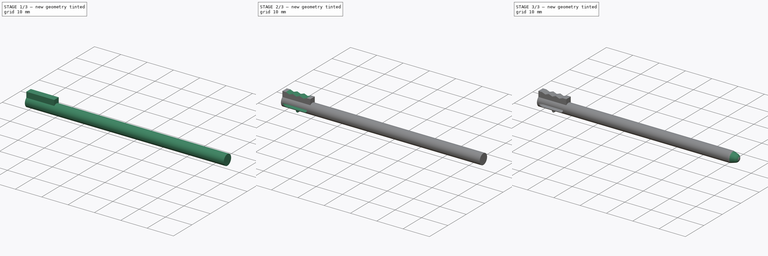
[diagram: build sequence overview — one tinted view per stage of 3, left to right]
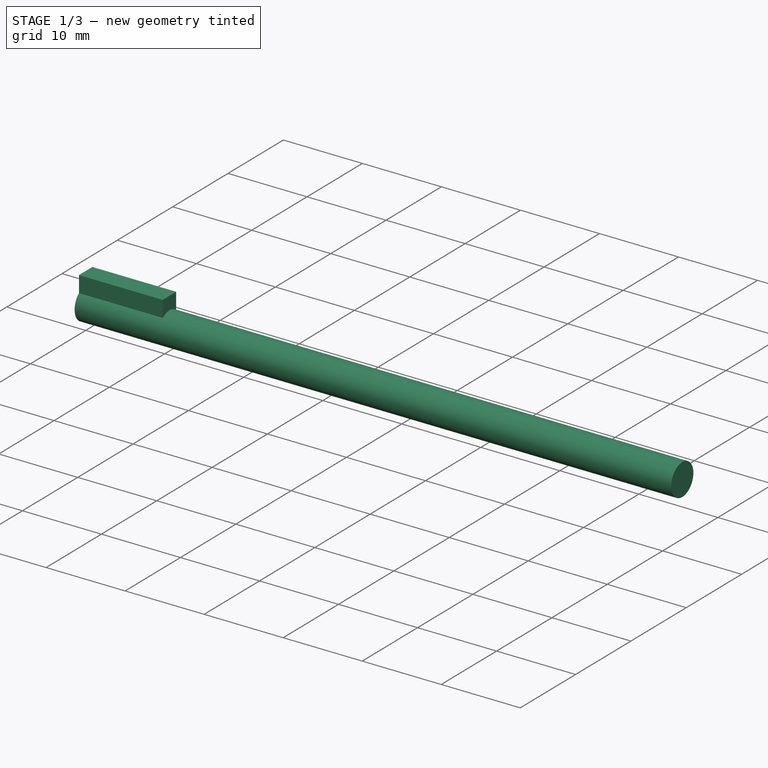
[diagram: stage 1 of 3 — iso view after this stage's code; geometry added in this stage tinted green]
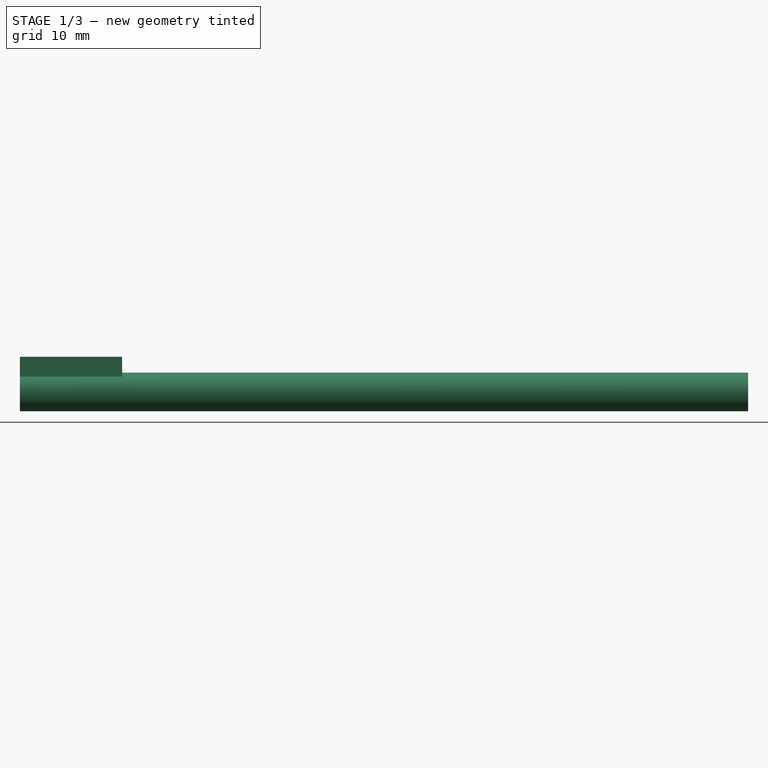
[diagram: stage 1 of 3 — front view after this stage's code; geometry added in this stage tinted green]
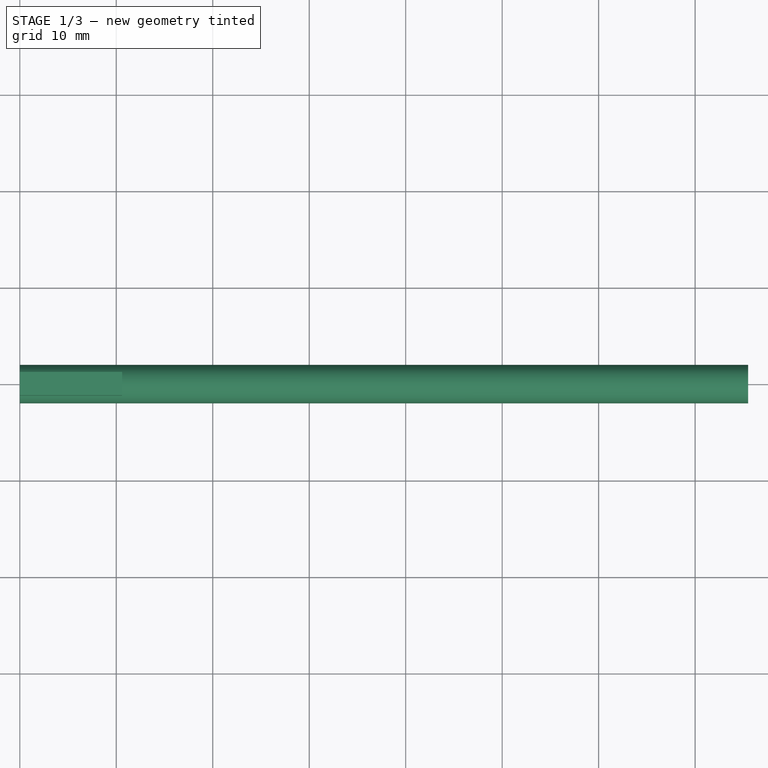
[diagram: stage 1 of 3 — top view after this stage's code; geometry added in this stage tinted green]
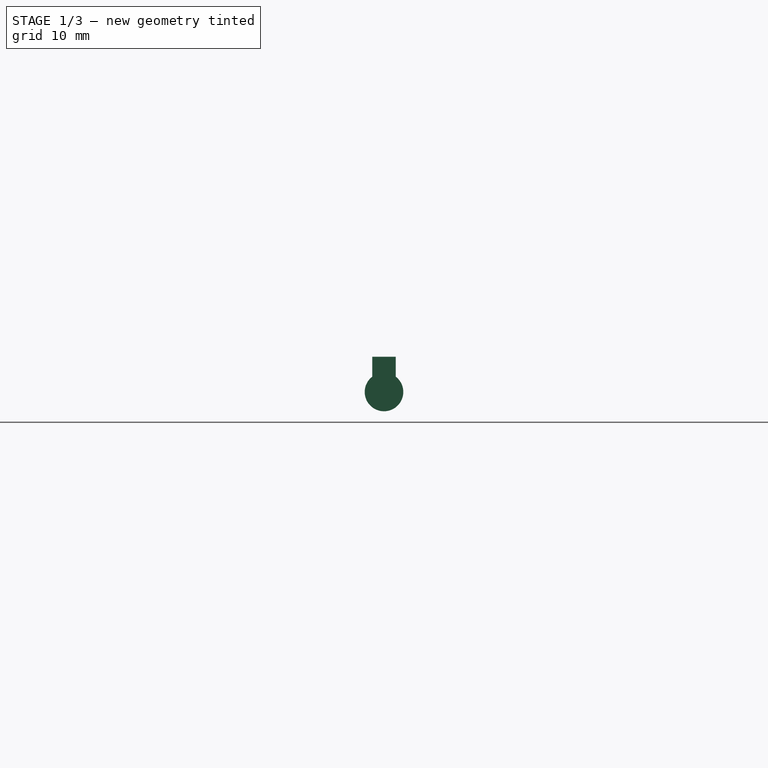
[diagram: stage 1 of 3 — right view after this stage's code; geometry added in this stage tinted green]
FCSTD DOCUMENT  (FreeCAD 1.0R39109 (Git))
Label: DS Stylus
License: Creative Commons Attribution-NonCommercial-ShareAlike
LicenseURL: http://creativecommons.org/licenses/by-nc-sa/4.0/
objects: Sketcher::SketchObject×7, PartDesign::Pad×3, PartDesign::Pocket×3, PartDesign::Groove×1, PartDesign::Body×1
note: 36 computed .brp shape members not serialized (recipe doc carries the construction recipe); baked Part::Feature solids carry a one-line shape summary decoded from their .brp

FEATURE [Sketcher::SketchObject] Sketch
  ArcFitTolerance = 0
  AttachmentSupport = -> [YZ_Plane]
  FullyConstrained = true
  MakeInternals = false
  MapMode = 5
  Placement = pos=(0,0,0) rot=(0.57735,0.57735,0.57735;2.0944rad)
  sketch-geometry (1):
    g0: Circle CenterX=0 CenterY=0 CenterZ=0 NormalX=0 NormalY=0 NormalZ=1 AngleXU=0 Radius=2
  constraints (2):
    c: Coincident(g0,g-1)
    c: Diameter(g0) = 4
FEATURE [PartDesign::Pad] Pad
  Direction = (1,0,0)
  Length = 75.5
  Length2 = 10
  Placement = pos=(0,0,0) rot=(0.57735,0.57735,0.57735;2.0944rad)
  Profile = -> Sketch
  ReferenceAxis = -> Sketch [N_Axis]
  Suppressed = false
  Type = 0
FEATURE [Sketcher::SketchObject] Sketch001
  ArcFitTolerance = 0
  AttachmentSupport = -> [Pad]
  ExternalGeometry = -> [Pad]
  FullyConstrained = true
  MakeInternals = false
  MapMode = 5
  Placement = pos=(0,0,0) rot=(0.57735,0.57735,-0.57735;4.18879rad)
  sketch-geometry (5):
    g0: LineSegment StartX=-1.2125 StartY=-3.65055 StartZ=0 EndX=1.2125 EndY=-3.65055 EndZ=0
    g1: LineSegment StartX=1.2125 StartY=-3.65055 StartZ=0 EndX=1.2125 EndY=-1.59055 EndZ=0
    g2: LineSegment StartX=1.2125 StartY=-1.59055 StartZ=0 EndX=-1.2125 EndY=-1.59055 EndZ=0
    g3: LineSegment StartX=-1.2125 StartY=-1.59055 StartZ=0 EndX=-1.2125 EndY=-3.65055 EndZ=0
    g4: LineSegment [constr] StartX=0 StartY=0 StartZ=0 EndX=0 EndY=-1.59055 EndZ=0
  constraints (14):
    c: Coincident(g0,g1)
    c: Coincident(g1,g2)
    c: Coincident(g2,g3)
    c: Coincident(g3,g0)
    c: Horizontal(g0)
    c: Horizontal(g2)
    c: Vertical(g1)
    c: Vertical(g3)
    c: Distance(g2) = 2.425
    c: Distance(g1) = 2.06
    c: Coincident(g4,g-3)
    c: Vertical(g4)
    c: Symmetric(g2,g1,g4)
    c: PointOnObject(g2,g-3)
FEATURE [PartDesign::Pad] Pad001
  BaseFeature = -> Pad
  Direction = (-1,0,0)
  Length = 10.6
  Length2 = 10
  Placement = pos=(0,0,0) rot=(0.57735,0.57735,0.57735;2.0944rad)
  Profile = -> Sketch001
  ReferenceAxis = -> Sketch001 [N_Axis]
  Refine = true
  Reversed = true
  Suppressed = false
  Type = 0
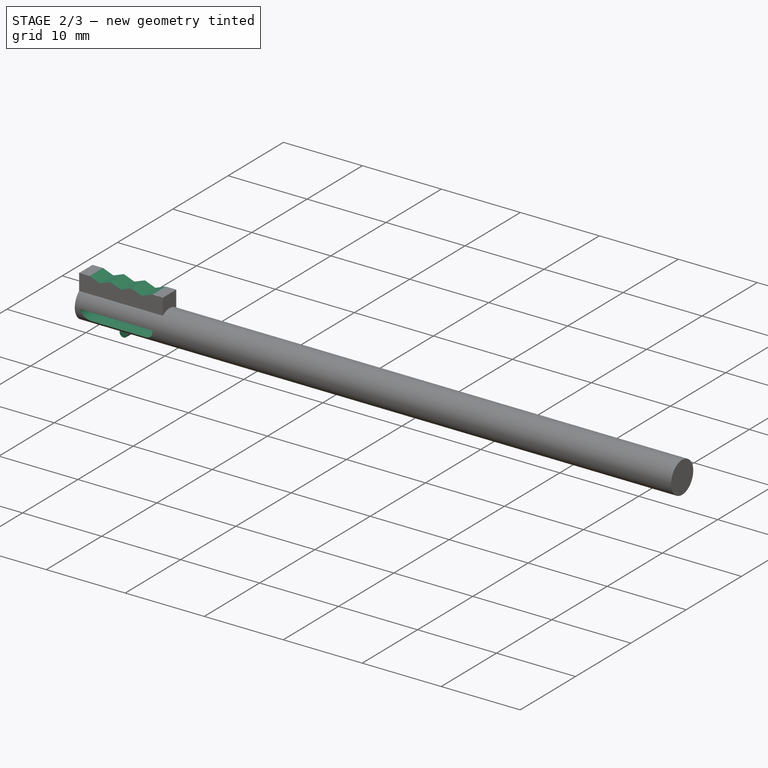
[diagram: stage 2 of 3 — iso view after this stage's code; geometry added in this stage tinted green]
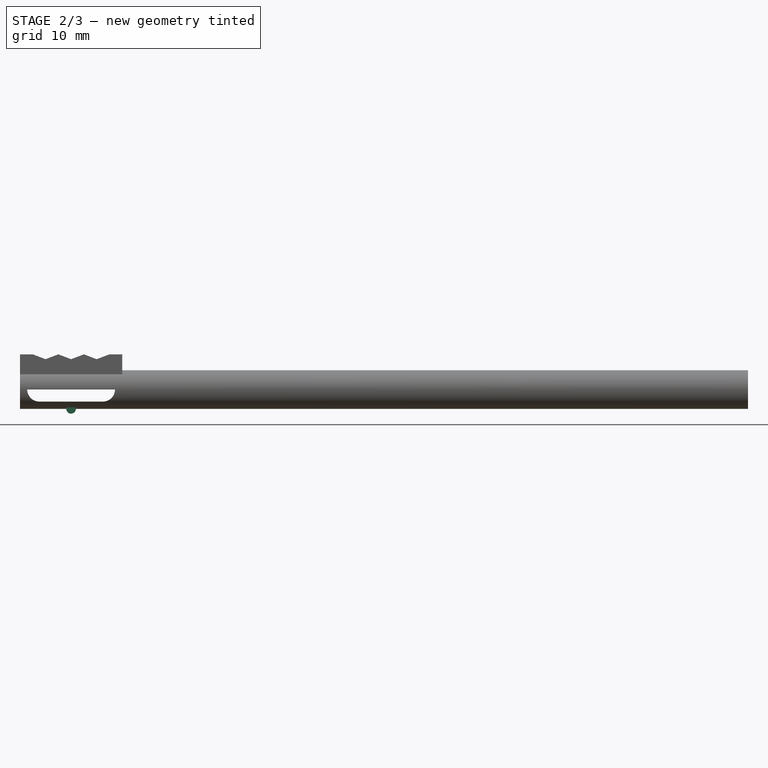
[diagram: stage 2 of 3 — front view after this stage's code; geometry added in this stage tinted green]
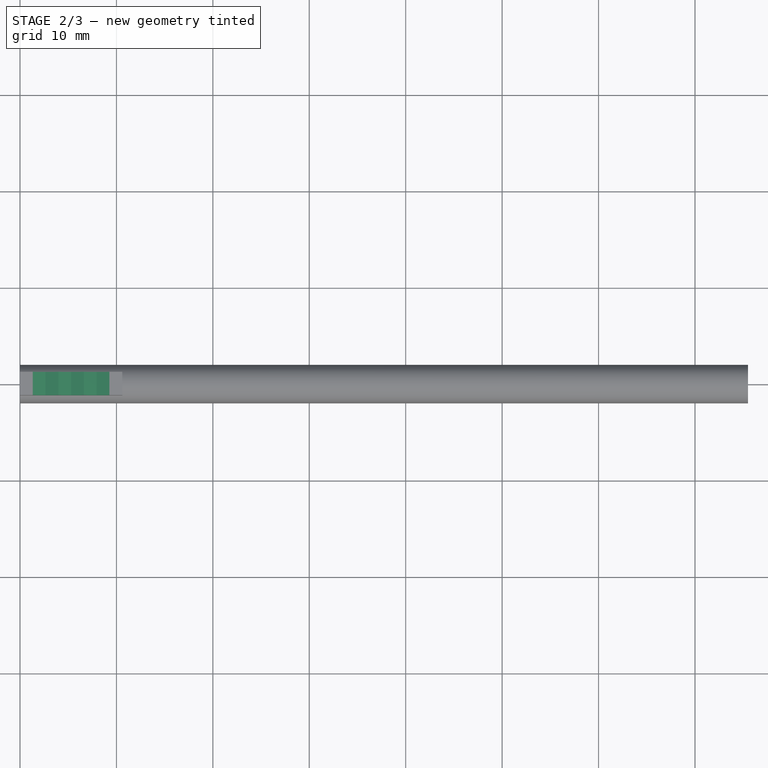
[diagram: stage 2 of 3 — top view after this stage's code; geometry added in this stage tinted green]
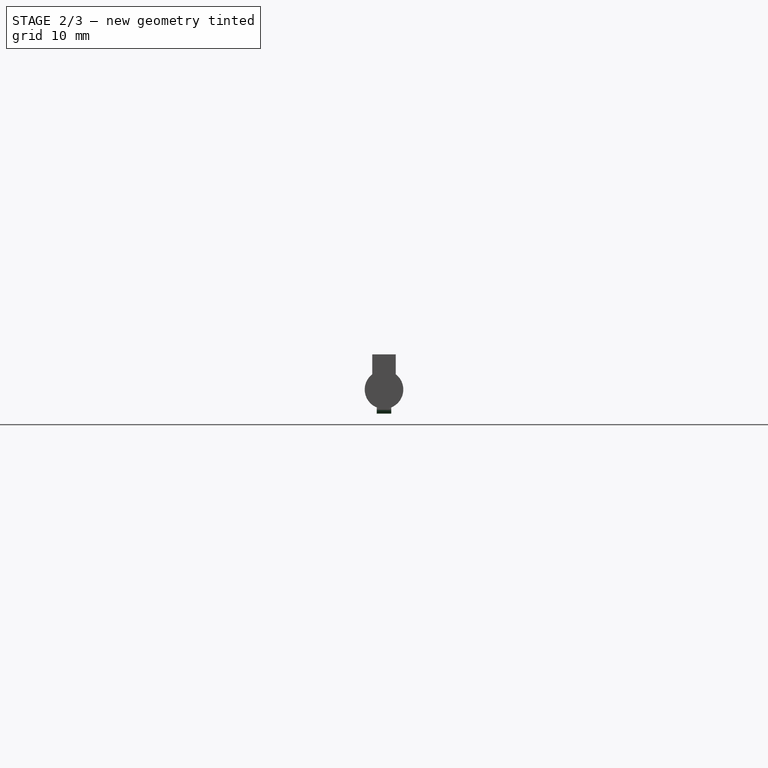
[diagram: stage 2 of 3 — right view after this stage's code; geometry added in this stage tinted green]
FEATURE [Sketcher::SketchObject] Sketch002
  ArcFitTolerance = 0
  AttachmentSupport = -> [Pad001]
  ExternalGeometry = -> [Pad001]
  FullyConstrained = true
  MakeInternals = false
  MapMode = 5
  Placement = pos=(-3e-16,-1.2125,1e-16) rot=(0.57735,0.57735,-0.57735;2.0944rad)
  sketch-geometry (17):
    g0: LineSegment [constr] StartX=-3.65055 StartY=-2.2e-15 StartZ=0 EndX=-3.65055 EndY=1.325 EndZ=0
    g1: LineSegment [constr] StartX=-3.65055 StartY=1.325 StartZ=0 EndX=-3.65055 EndY=3.975 EndZ=0
    g2: LineSegment [constr] StartX=-3.65055 StartY=3.975 StartZ=0 EndX=-3.65055 EndY=6.625 EndZ=0
    g3: LineSegment [constr] StartX=-3.65055 StartY=6.625 StartZ=0 EndX=-3.65055 EndY=9.275 EndZ=0
    g4: LineSegment [constr] StartX=-3.65055 StartY=9.275 StartZ=0 EndX=-3.65055 EndY=10.6 EndZ=0
    g5: LineSegment StartX=-3.65055 StartY=1.325 StartZ=0 EndX=-3.15055 EndY=2.65 EndZ=0
    g6: LineSegment StartX=-3.65055 StartY=3.975 StartZ=0 EndX=-3.15055 EndY=2.65 EndZ=0
    g7: LineSegment StartX=-3.65055 StartY=3.975 StartZ=0 EndX=-3.15055 EndY=5.3 EndZ=0
    g8: LineSegment StartX=-3.15055 StartY=5.3 StartZ=0 EndX=-3.65055 EndY=6.625 EndZ=0
    g9: LineSegment StartX=-3.65055 StartY=6.625 StartZ=0 EndX=-3.15055 EndY=7.95 EndZ=0
    g10: LineSegment StartX=-3.15055 StartY=7.95 StartZ=0 EndX=-3.65055 EndY=9.275 EndZ=0
    g11: LineSegment [constr] StartX=-3.15055 StartY=7.95 StartZ=0 EndX=-3.65055 EndY=7.95 EndZ=0
    g12: LineSegment [constr] StartX=-3.15055 StartY=5.3 StartZ=0 EndX=-3.65055 EndY=5.3 EndZ=0
    g13: LineSegment [constr] StartX=-3.15055 StartY=2.65 StartZ=0 EndX=-3.65055 EndY=2.65 EndZ=0
    g14: LineSegment StartX=-3.65055 StartY=9.275 StartZ=0 EndX=-4.65055 EndY=9.275 EndZ=0
    g15: LineSegment StartX=-4.65055 StartY=9.275 StartZ=0 EndX=-4.65055 EndY=1.325 EndZ=0
    g16: LineSegment StartX=-4.65055 StartY=1.325 StartZ=0 EndX=-3.65055 EndY=1.325 EndZ=0
  constraints (43):
    c: Coincident(g0,g-3)
    c: PointOnObject(g0,g-3)
    c: Coincident(g1,g0)
    c: PointOnObject(g1,g-3)
    c: Coincident(g2,g1)
    c: PointOnObject(g2,g-3)
    c: Coincident(g3,g2)
    c: PointOnObject(g3,g-3)
    c: Coincident(g4,g3)
    c: Coincident(g4,g-3)
    c: Distance(g3) = 2.65
    c: Equal(g3,g2)
    c: Equal(g2,g1)
    c: Equal(g4,g0)
    c: Coincident(g5,g0)
    c: Coincident(g6,g1)
    c: Coincident(g6,g5)
    c: Coincident(g7,g1)
    c: Coincident(g8,g7)
    c: Coincident(g8,g2)
    c: Coincident(g9,g2)
    c: Coincident(g10,g9)
    c: Coincident(g10,g3)
    c: Coincident(g11,g9)
    c: Horizontal(g11)
    c: Coincident(g12,g7)
    c: Horizontal(g12)
    c: Coincident(g13,g5)
    c: Horizontal(g13)
    c: Symmetric(g0,g1,g13)
    c: Symmetric(g1,g2,g12)
    c: Symmetric(g2,g3,g11)
    c: Equal(g11,g12)
    c: Equal(g12,g13)
    c: Distance(g12) = 0.5
    c: Coincident(g14,g10)
    c: Horizontal(g14)
    c: Coincident(g15,g14)
    c: Vertical(g15)
    c: Coincident(g16,g15)
    c: Coincident(g16,g5)
    c: Horizontal(g16)
    c: Distance(g16) = 1
FEATURE [PartDesign::Pocket] Pocket
  BaseFeature = -> Pad001
  Direction = (0,1,0)
  Length = 5
  Length2 = 5
  Placement = pos=(0,0,0) rot=(0.57735,0.57735,0.57735;2.0944rad)
  Profile = -> Sketch002
  ReferenceAxis = -> Sketch002 [N_Axis]
  Suppressed = false
  Type = 0
FEATURE [Sketcher::SketchObject] Sketch003
  ArcFitTolerance = 0
  AttachmentSupport = -> [XZ_Plane]
  ExternalGeometry = -> [Pocket]
  FullyConstrained = true
  MakeInternals = false
  MapMode = 5
  Placement = pos=(0,0,0) rot=(1,0,0;1.5708rad)
  sketch-geometry (9):
    g0: ArcOfCircle [constr] CenterX=2 CenterY=0 CenterZ=0 NormalX=0 NormalY=0 NormalZ=1 AngleXU=0 Radius=1.25 StartAngle=1.5708 EndAngle=4.71239
    g1: ArcOfCircle [constr] CenterX=8.6 CenterY=0 CenterZ=0 NormalX=0 NormalY=0 NormalZ=1 AngleXU=0 Radius=1.25 StartAngle=4.71239 EndAngle=7.85398
    g2: LineSegment StartX=2 StartY=-1.25 StartZ=0 EndX=8.6 EndY=-1.25 EndZ=0
    g3: LineSegment [constr] StartX=8.6 StartY=1.25 StartZ=0 EndX=2 EndY=1.25 EndZ=0
    g4: LineSegment [constr] StartX=0 StartY=6.1e-15 StartZ=0 EndX=0.75 EndY=6.1e-15 EndZ=0
    g5: LineSegment [constr] StartX=2 StartY=0 StartZ=0 EndX=2 EndY=-1.25 EndZ=0
    g6: LineSegment StartX=0.75 StartY=6.1e-15 StartZ=0 EndX=9.85 EndY=6.1e-15 EndZ=0
    g7: ArcOfCircle CenterX=2 CenterY=1.9e-15 CenterZ=0 NormalX=0 NormalY=0 NormalZ=1 AngleXU=0 Radius=1.25 StartAngle=3.14159 EndAngle=4.71239
    g8: ArcOfCircle CenterX=8.6 CenterY=9.7e-15 CenterZ=0 NormalX=0 NormalY=0 NormalZ=1 AngleXU=0 Radius=1.25 StartAngle=4.71239 EndAngle=6.28319
  constraints (24):
    c: Tangent(g0,g2) = -1.5708
    c: Tangent(g2,g1) = -1.5708
    c: Tangent(g1,g3) = -1.5708
    c: Tangent(g3,g0) = -1.5708
    c: Equal(g0,g1)
    c: PointOnObject(g0,g-1)
    c: PointOnObject(g1,g-1)
    c: Coincident(g4,g-1)
    c: PointOnObject(g4,g0)
    c: Distance(g4) = 0.75
    c: Distance(g2) = 6.6
    c: Coincident(g5,g0)
    c: Coincident(g5,g0)
    c: Distance(g5) = 1.25
    c: Horizontal(g4)
    c: Coincident(g6,g4)
    c: PointOnObject(g6,g1)
    c: Horizontal(g6)
    c: Coincident(g7,g6)
    c: Coincident(g7,g2)
    c: Coincident(g8,g2)
    c: Coincident(g8,g6)
    c: Equal(g7,g0)
    c: Equal(g1,g8)
FEATURE [PartDesign::Pocket] Pocket001
  BaseFeature = -> Pocket
  Direction = (0,1,-2e-16)
  Length = 5
  Length2 = 5
  Placement = pos=(0,0,0) rot=(0.57735,0.57735,0.57735;2.0944rad)
  Profile = -> Sketch003
  ReferenceAxis = -> Sketch003 [N_Axis]
  Suppressed = false
  Type = 4
FEATURE [Sketcher::SketchObject] Sketch004
  ArcFitTolerance = 0
  AttachmentSupport = -> [XZ_Plane]
  ExternalGeometry = -> [Pocket001]
  FullyConstrained = true
  MakeInternals = false
  MapMode = 5
  Placement = pos=(0,0,0) rot=(1,0,0;1.5708rad)
  sketch-geometry (3):
    g0: Circle CenterX=5.3 CenterY=-2 CenterZ=0 NormalX=0 NormalY=0 NormalZ=1 AngleXU=0 Radius=0.5
    g1: LineSegment [constr] StartX=5.3 StartY=-2 StartZ=0 EndX=5.3 EndY=1.15e-14 EndZ=0
    g2: LineSegment [constr] StartX=0 StartY=-2 StartZ=0 EndX=5.3 EndY=-2 EndZ=0
  constraints (7):
    c: Diameter(g0) = 1
    c: Coincident(g1,g0)
    c: Symmetric(g-4,g-4,g1)
    c: Coincident(g2,g-3)
    c: Coincident(g2,g0)
    c: Horizontal(g2)
    c: Vertical(g1)
FEATURE [PartDesign::Pad] Pad002
  BaseFeature = -> Pocket001
  Direction = (0,-1,2e-16)
  Length = 0.75
  Length2 = 0.75
  Placement = pos=(0,0,0) rot=(0.57735,0.57735,0.57735;2.0944rad)
  Profile = -> Sketch004
  ReferenceAxis = -> Sketch004 [N_Axis]
  Refine = true
  Suppressed = false
  Type = 4
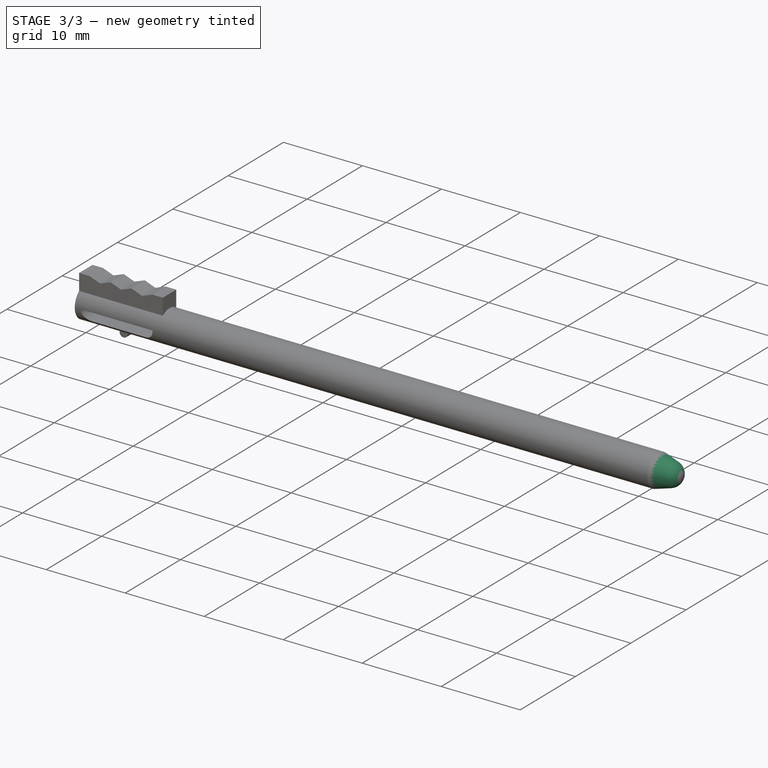
[diagram: stage 3 of 3 — iso view after this stage's code; geometry added in this stage tinted green]
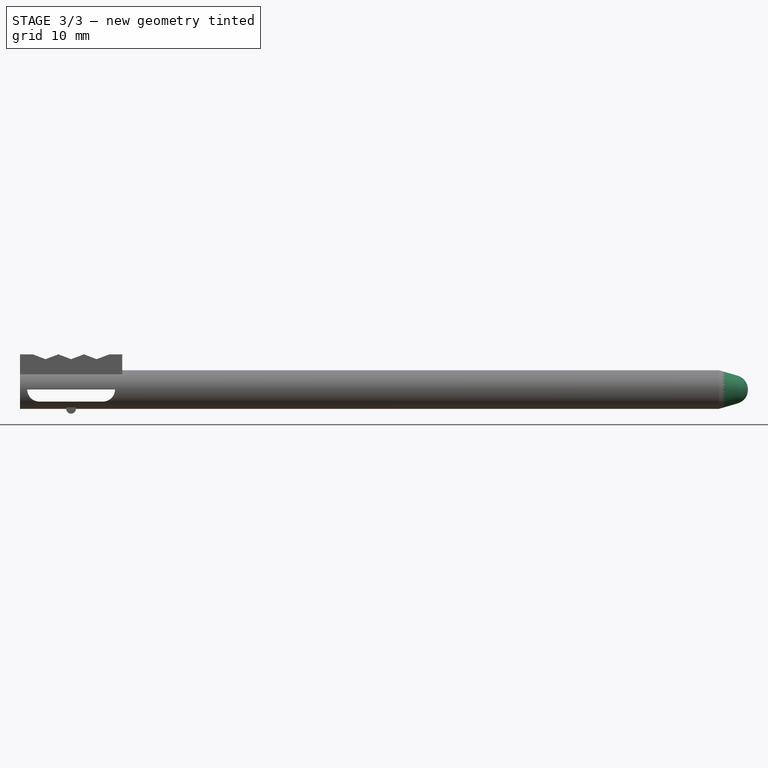
[diagram: stage 3 of 3 — front view after this stage's code; geometry added in this stage tinted green]
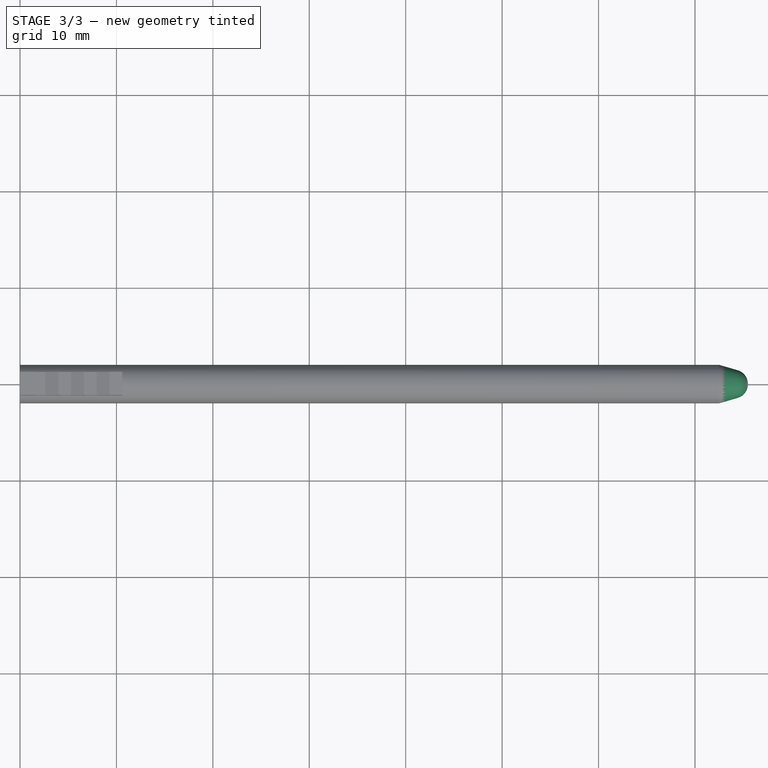
[diagram: stage 3 of 3 — top view after this stage's code; geometry added in this stage tinted green]
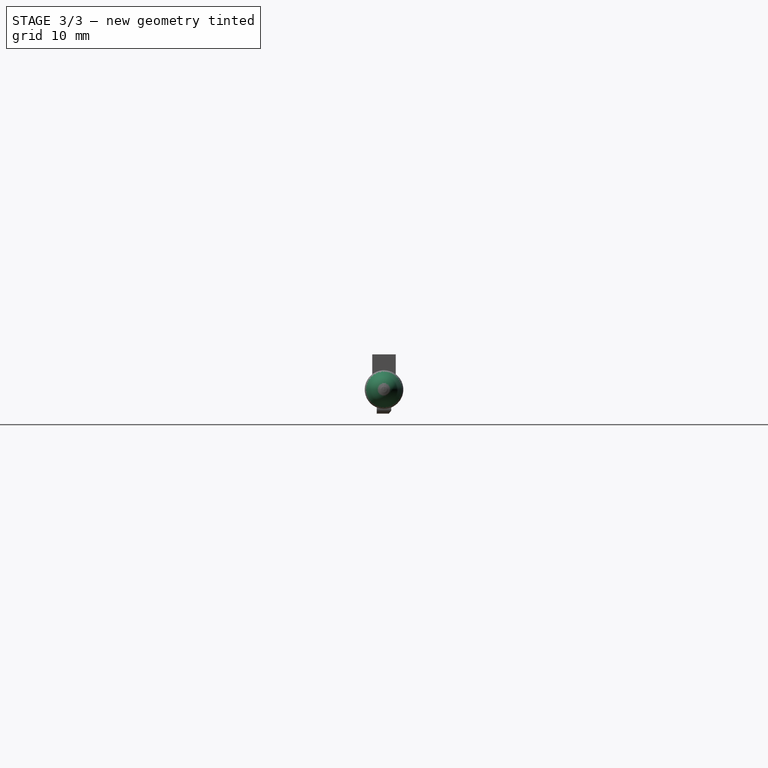
[diagram: stage 3 of 3 — right view after this stage's code; geometry added in this stage tinted green]
FEATURE [Sketcher::SketchObject] Sketch005
  ArcFitTolerance = 0
  AttachmentSupport = -> [XZ_Plane]
  ExternalGeometry = -> [Pad002]
  FullyConstrained = true
  MakeInternals = false
  MapMode = 5
  Placement = pos=(0,0,0) rot=(1,0,0;1.5708rad)
  sketch-geometry (6):
    g0: ArcOfCircle CenterX=74 CenterY=1.65281e-07 CenterZ=0 NormalX=0 NormalY=0 NormalZ=1 AngleXU=0 Radius=1.5 StartAngle=6.28319 EndAngle=7.57019
    g1: LineSegment StartX=75.5 StartY=2 StartZ=0 EndX=72.5 EndY=2 EndZ=0
    g2: LineSegment StartX=72.5 StartY=2 StartZ=0 EndX=74.42 EndY=1.44 EndZ=0
    g3: LineSegment StartX=75.5 StartY=2 StartZ=0 EndX=76.5 EndY=2 EndZ=0
    g4: LineSegment StartX=76.5 StartY=2 StartZ=0 EndX=76.5 EndY=0 EndZ=0
    g5: LineSegment StartX=76.5 StartY=0 StartZ=0 EndX=75.5 EndY=6.27e-14 EndZ=0
  constraints (16):
    c: Symmetric(g-3,g-3,g0)
    c: Tangent(g-3,g0)
    c: Coincident(g1,g-3)
    c: Horizontal(g1)
    c: Coincident(g2,g1)
    c: Tangent(g2,g0) = 1.5708
    c: Coincident(g3,g1)
    c: Horizontal(g3)
    c: Coincident(g4,g3)
    c: PointOnObject(g4,g-1)
    c: Vertical(g4)
    c: Coincident(g5,g4)
    c: Coincident(g5,g0)
    c: Distance(g3) = 1
    c: Distance(g1) = 3
    c: Diameter(g0) = 3
FEATURE [PartDesign::Groove] Groove
  Angle = 360
  Angle2 = 60
  Axis = (1,0,0)
  Base = (0,0,0)
  BaseFeature = -> Pad002
  Placement = pos=(0,0,0) rot=(0.57735,0.57735,0.57735;2.0944rad)
  Profile = -> Sketch005
  ReferenceAxis = -> Sketch005 [H_Axis]
  Refine = true
  Reversed = true
  Suppressed = false
  Type = 0
FEATURE [Sketcher::SketchObject] Sketch006
  ArcFitTolerance = 0
  AttachmentSupport = -> [Groove]
  ExternalGeometry = -> [Groove]
  FullyConstrained = true
  MakeInternals = false
  MapMode = 5
  Placement = pos=(-8e-16,0,0) rot=(0.57735,0.57735,-0.57735;4.18879rad)
  sketch-geometry (7):
    g0: LineSegment [constr] StartX=-0.75 StartY=2.5 StartZ=0 EndX=0.75 EndY=2.5 EndZ=0
    g1: LineSegment [constr] StartX=0.491663 StartY=2.5 StartZ=0 EndX=0.75 EndY=2.19461 EndZ=0
    g2: LineSegment [constr] StartX=0.75 StartY=2.19461 StartZ=0 EndX=1.39012 EndY=1.4379 EndZ=0
    g3: LineSegment [constr] StartX=1.39012 StartY=1.4379 StartZ=0 EndX=1.64846 EndY=1.13251 EndZ=0
    g4: LineSegment StartX=0.491663 StartY=2.5 StartZ=0 EndX=1.64846 EndY=2.5 EndZ=0
    g5: LineSegment StartX=1.64846 StartY=2.5 StartZ=0 EndX=1.64846 EndY=1.13251 EndZ=0
    g6: LineSegment StartX=1.64846 StartY=1.13251 StartZ=0 EndX=0.491663 EndY=2.5 EndZ=0
  constraints (19):
    c: Coincident(g0,g-5)
    c: Coincident(g0,g-4)
    c: PointOnObject(g1,g0)
    c: PointOnObject(g1,g-4)
    c: Coincident(g2,g1)
    c: Parallel(g1,g2)
    c: Distance(g1) = 0.4
    c: Coincident(g3,g2)
    c: PointOnObject(g3,g-3)
    c: Distance(g3) = 0.4
    c: PointOnObject(g2,g-3)
    c: Parallel(g2,g3)
    c: Coincident(g4,g1)
    c: Horizontal(g4)
    c: Coincident(g5,g4)
    c: Coincident(g5,g3)
    c: Coincident(g6,g5)
    c: Coincident(g6,g4)
    c: Vertical(g5)
FEATURE [PartDesign::Pocket] Pocket002
  BaseFeature = -> Groove
  Direction = (1,0,0)
  Length = 100
  Length2 = 100
  Placement = pos=(0,0,0) rot=(0.57735,0.57735,0.57735;2.0944rad)
  Profile = -> Sketch006
  ReferenceAxis = -> Sketch006 [N_Axis]
  Suppressed = false
  Type = 4
FEATURE [PartDesign::Body] Body  label="Nintendo DS Stylus"
  AllowCompound = false
  Group = -> [Sketch,Pad,Sketch001,Pad001,Sketch002,Pocket,Sketch003,Pocket001,Sketch004,Pad002,Sketch005,Groove,Sketch006,Pocket002]
  Origin = -> Origin
  Placement = pos=(0,0,0) rot=(1,0,0;0.86865rad)
  Tip = -> Pocket002
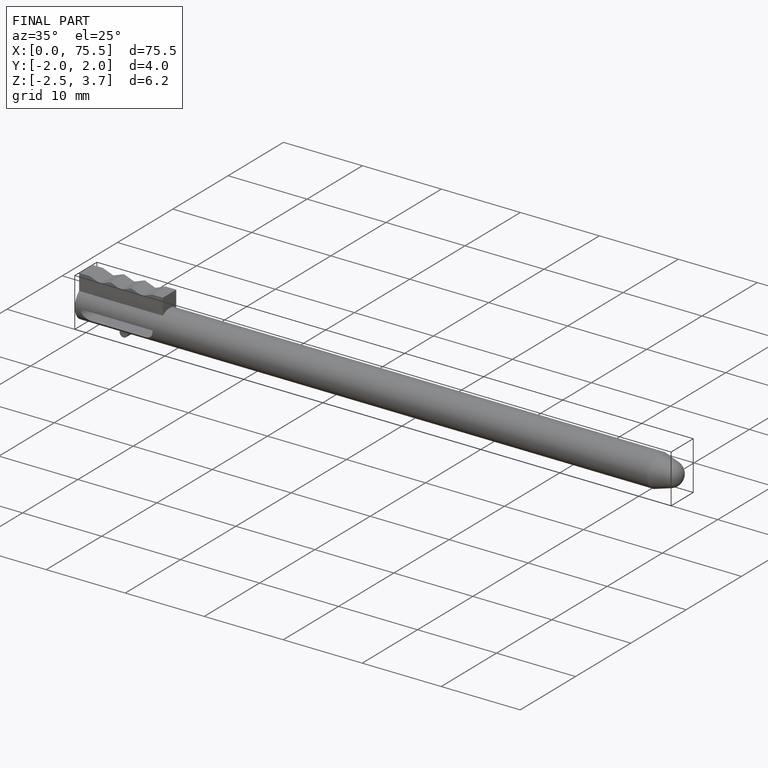
[diagram: finished part — iso view with bounding-box wireframe]
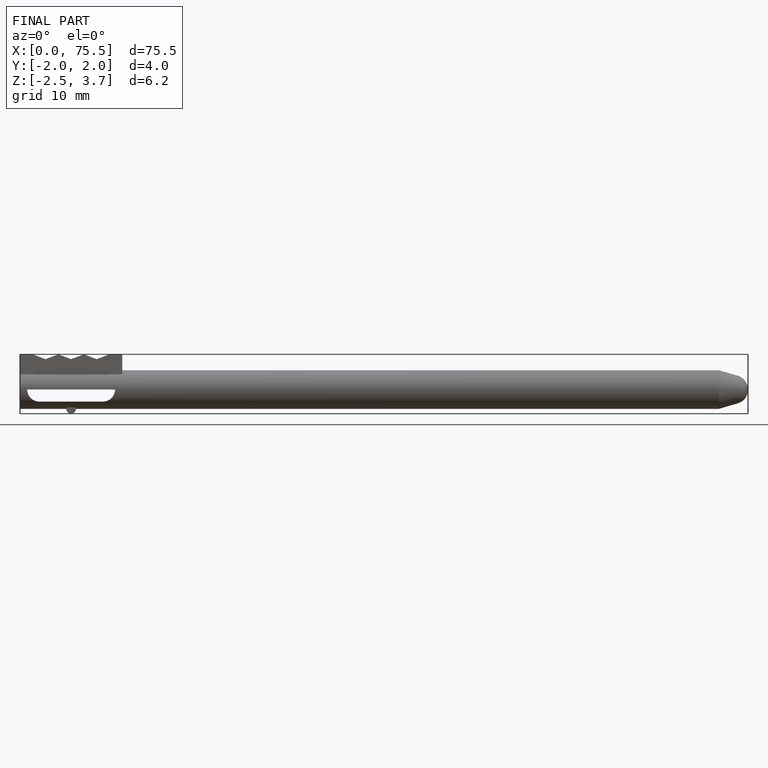
[diagram: finished part — front view with bounding-box wireframe]
